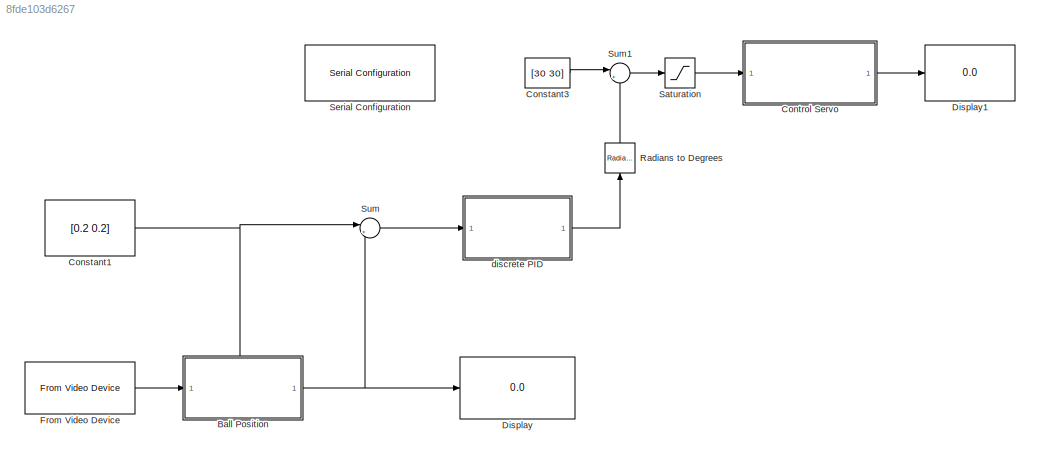
MODEL slx_8fde103d6267
KIND model
CONFIG AbsTol = auto
CONFIG EnableMultiTasking = off
CONFIG FixedStep = 1/30
CONFIG MaxStep = auto
CONFIG MinStep = auto
CONFIG RelTol = 1e-3
CONFIG SampleTimeConstraint = Unconstrained
CONFIG SolverName = VariableStepAuto
CONFIG StartTime = 0.0
CONFIG StopTime = inf
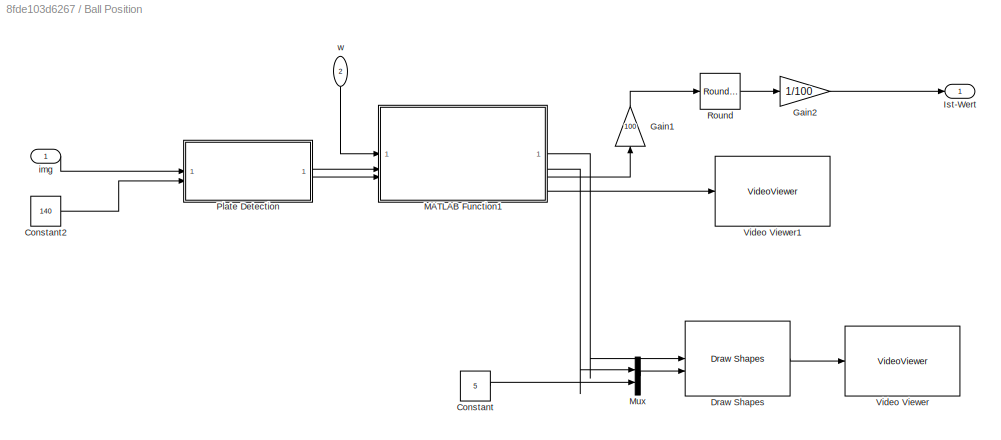
BLOCK [SubSystem] Ball Position
  PortSchema = {"entries":[{"content":{"sides":[{"content":{"connectorIds":["In1"]},"type":"ConnectorPlacement.EquallySpacedRectSide","uuid":"ceb15f42-21bb-4f4e-b2bb-f76c0e940da7"},{"content":{"connectorIds":["Out1"],"side":"RIGHT"},"type":"ConnectorPlacement.EquallySpacedRectSide","uuid":"4847c9c9-69f0-4792-8281-833646641724"},{"content":{"connectorIds":["In2"],"side":"TOP"},"type":"ConnectorPlacement.EquallySp...<+245ch>
BLOCK [Constant] Ball Position/Constant
  Value = 5
  VectorParams1D = off
BLOCK [Constant] Ball Position/Constant2
  Value = 140
BLOCK [Reference] Ball Position/Draw Shapes  REF=visiontextngfix/Draw Shapes
  SourceBlock = visiontextngfix/Draw Shapes
  SourceType = Draw Shapes
BLOCK [Gain] Ball Position/Gain1
  Gain = 100
  NameLocation = right
BLOCK [Gain] Ball Position/Gain2
  Gain = 1/100
BLOCK [Outport] Ball Position/Ist-Wert
  IconDisplay = Signal name
  NameLocation = top
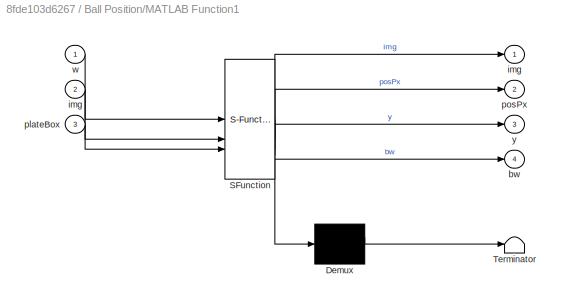
BLOCK [SubSystem] Ball Position/MATLAB Function1
  ErrorFcn = Stateflow.Translate.translate
  LibrarySourceBlock = simulink/User-Defined\nFunctions/MATLAB Function
  PermitHierarchicalResolution = ExplicitOnly
  SFBlockType = MATLAB Function
  TreatAsAtomicUnit = on
BLOCK [Demux] Ball Position/MATLAB Function1/ Demux 
  Outputs = 1
BLOCK [S-Function] Ball Position/MATLAB Function1/ SFunction 
  EnableBusSupport = on
  FunctionName = sf_sfun
  PortCounts = [3 5]
  SFcnIsStateOwnerBlock = off
  SFunctionDeploymentMode = off
  Tag = Stateflow S-Function 1
BLOCK [Terminator] Ball Position/MATLAB Function1/ Terminator 
BLOCK [Outport] Ball Position/MATLAB Function1/bw
  Port = 4
BLOCK [Outport] Ball Position/MATLAB Function1/img
BLOCK [Inport] Ball Position/MATLAB Function1/img 
  Port = 2
BLOCK [Inport] Ball Position/MATLAB Function1/plateBox
  Port = 3
BLOCK [Outport] Ball Position/MATLAB Function1/posPx
  Port = 2
BLOCK [Inport] Ball Position/MATLAB Function1/w
BLOCK [Outport] Ball Position/MATLAB Function1/y
  Port = 3
BLOCK [Mux] Ball Position/Mux
  DisplayOption = bar
  Inputs = 2
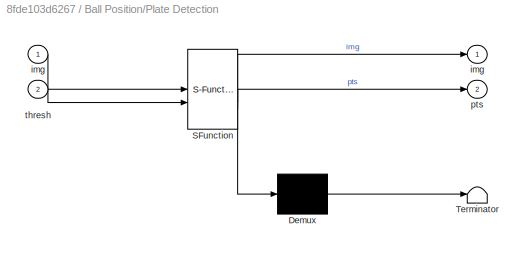
BLOCK [SubSystem] Ball Position/Plate Detection
  ErrorFcn = Stateflow.Translate.translate
  LibrarySourceBlock = simulink/User-Defined\nFunctions/MATLAB Function
  PermitHierarchicalResolution = ExplicitOnly
  SFBlockType = MATLAB Function
  TreatAsAtomicUnit = on
BLOCK [Demux] Ball Position/Plate Detection/ Demux 
  Outputs = 1
BLOCK [S-Function] Ball Position/Plate Detection/ SFunction 
  EnableBusSupport = on
  FunctionName = sf_sfun
  PortCounts = [2 3]
  SFcnIsStateOwnerBlock = off
  SFunctionDeploymentMode = off
  Tag = Stateflow S-Function 2
BLOCK [Terminator] Ball Position/Plate Detection/ Terminator 
BLOCK [Outport] Ball Position/Plate Detection/img
BLOCK [Inport] Ball Position/Plate Detection/img 
BLOCK [Outport] Ball Position/Plate Detection/pts
  Port = 2
BLOCK [Inport] Ball Position/Plate Detection/thresh
  Port = 2
BLOCK [Rounding] Ball Position/Round
  Operator = round
BLOCK [VideoViewer] Ball Position/Video Viewer
  FigPos = [1031 805 816 339]
  ScopeSpecificationString = vipscopes.VideoViewerScopeCfg('CurrentConfiguration', extmgr.ConfigurationSet(extmgr.Configuration('Core','General UI',true),extmgr.Configuration('Core','Source UI',true),extmgr.Configuration('Sources','WiredSimulink',true),extmgr.Configuration('Visuals','Video',true),extmgr.Configuration('Tools','Image Navigation Tools',true,'FitToView',true),extmgr.Configuration('Tools','Image Tool',true),extmgr...<+119ch>
  colormapValue = gray(256)
BLOCK [VideoViewer] Ball Position/Video Viewer1
  Commented = on
  FigPos = [179 908 614 489]
  ScopeSpecificationString = vipscopes.VideoViewerScopeCfg('CurrentConfiguration', extmgr.ConfigurationSet(extmgr.Configuration('Core','General UI',true),extmgr.Configuration('Core','Source UI',true),extmgr.Configuration('Sources','WiredSimulink',true),extmgr.Configuration('Visuals','Video',true),extmgr.Configuration('Tools','Image Navigation Tools',true),extmgr.Configuration('Tools','Image Tool',true),extmgr.Configuration('T...<+101ch>
BLOCK [Inport] Ball Position/img 
BLOCK [Inport] Ball Position/w
  IconDisplay = Signal name
  NameLocation = right
  Port = 2
BLOCK [Constant] Constant1
  SampleTime = 1/30
  Value = [0.2 0.2]
  VectorParams1D = off
BLOCK [Constant] Constant3
  Value = [30 30]
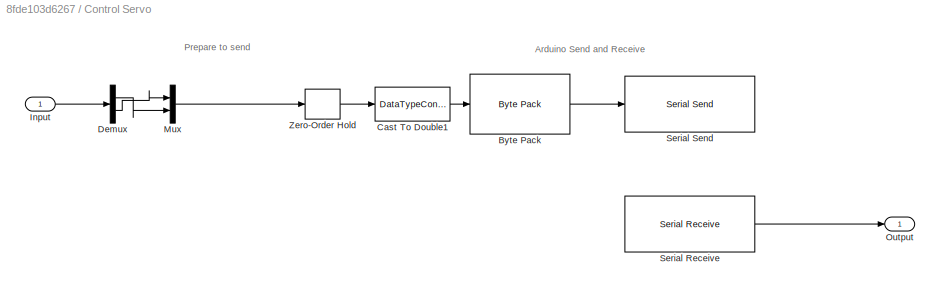
BLOCK [SubSystem] Control Servo
BLOCK [Reference] Control Servo/Byte Pack  REF=svdutilitieslib/Byte Pack
  SourceBlock = svdutilitieslib/Byte Pack
  SourceType = Byte pack
BLOCK [DataTypeConversion] Control Servo/Cast To Double1
  OutDataTypeStr = uint8
  RndMeth = Floor
  SaturateOnIntegerOverflow = off
BLOCK [Demux] Control Servo/Demux
  Outputs = 2
BLOCK [Inport] Control Servo/Input
BLOCK [Mux] Control Servo/Mux
  DisplayOption = bar
  Inputs = 2
BLOCK [Outport] Control Servo/Output
BLOCK [Reference] Control Servo/Serial Receive  REF=instrumentseriallib/Serial Receive
  LibrarySourceBlock = instrumentlib/Serial Receive
  SourceBlock = instrumentseriallib/Serial Receive
  SourceType = system.SerialReceive
BLOCK [Reference] Control Servo/Serial Send  REF=instrumentseriallib/Serial Send
  LibrarySourceBlock = instrumentlib/Serial Send
  SourceBlock = instrumentseriallib/Serial Send
  SourceType = system.SerialSend
BLOCK [ZeroOrderHold] Control Servo/Zero-Order Hold
  SampleTime = 0.01
BLOCK [Display] Display
  Decimation = 1
BLOCK [Display] Display1
  Decimation = 1
BLOCK [Reference] From Video Device  REF=imaqlib/From Video Device
  SourceBlock = imaqlib/From Video Device
  SourceType = From Video Device
  UserDataPersistent = on
BLOCK [Reference] Radians to Degrees  REF=simulink_extras/Transformations/Radians
to Degrees
  NameLocation = right
  SourceBlock = simulink_extras/Transformations/Radians\nto Degrees
  SourceType = RadiansToDegrees
BLOCK [Saturate] Saturation
  LowerLimit = 10
  UpperLimit = 50
BLOCK [Reference] Serial Configuration  REF=instrumentseriallib/Serial Configuration
  LibrarySourceBlock = instrumentlib/Serial Configuration
  Priority = -200000
  SourceBlock = instrumentseriallib/Serial Configuration
  SourceType = system.SerialConfiguration
BLOCK [Sum] Sum
  Inputs = |+-
BLOCK [Sum] Sum1
  Inputs = |++
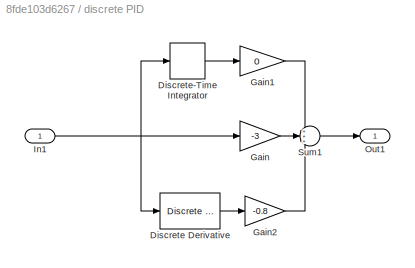
BLOCK [SubSystem] discrete PID
BLOCK [Reference] discrete PID/Discrete Derivative  REF=simulink/Discrete/Discrete Derivative
  SourceBlock = simulink/Discrete/Discrete Derivative
  SourceType = Discrete Derivative
BLOCK [DiscreteIntegrator] discrete PID/Discrete-Time Integrator
  ICPrevOutput = DiscIntNeverNeededParam
  ICPrevScaledInput = DiscIntNeverNeededParam
  InitialConditionSetting = Auto
  SampleTime = 1/30
BLOCK [Gain] discrete PID/Gain
  Gain = -3
BLOCK [Gain] discrete PID/Gain1
  Gain = 0
BLOCK [Gain] discrete PID/Gain2
  Gain = -0.8
BLOCK [Inport] discrete PID/In1
BLOCK [Outport] discrete PID/Out1
BLOCK [Sum] discrete PID/Sum1
  Inputs = +++
ANNOTATION Control Servo: Arduino Send and Receive
ANNOTATION Control Servo: Prepare to send
LINE Ball Position/Constant2:1 -> Ball Position/Plate Detection:2
LINE Ball Position/Constant:1 -> Ball Position/Mux:2
LINE Ball Position/Draw Shapes:1 -> Ball Position/Video Viewer:1
LINE Ball Position/Gain1:1 -> Ball Position/Round:1
LINE Ball Position/Gain2:1 -> Ball Position/Ist-Wert:1
LINE Ball Position/MATLAB Function1:1 -> Ball Position/Draw Shapes:1
LINE Ball Position/MATLAB Function1:2 -> Ball Position/Mux:1
LINE Ball Position/MATLAB Function1:3 -> Ball Position/Gain1:1
LINE Ball Position/MATLAB Function1:4 -> Ball Position/Video Viewer1:1
LINE Ball Position/Mux:1 -> Ball Position/Draw Shapes:2
LINE Ball Position/Plate Detection:1 -> Ball Position/MATLAB Function1:2
LINE Ball Position/Plate Detection:2 -> Ball Position/MATLAB Function1:3
LINE Ball Position/Round:1 -> Ball Position/Gain2:1
LINE Ball Position/img :1 -> Ball Position/Plate Detection:1
LINE Ball Position/w:1 -> Ball Position/MATLAB Function1:1
NET Ball Position:1 -> Display:1, Sum:2
NET Constant1:1 -> Ball Position:2, Sum:1
LINE Constant3:1 -> Sum1:1
LINE Control Servo/Byte Pack:1 -> Control Servo/Serial Send:1
LINE Control Servo/Cast To Double1:1 -> Control Servo/Byte Pack:1
LINE Control Servo/Demux:1 -> Control Servo/Mux:2
LINE Control Servo/Demux:2 -> Control Servo/Mux:1
LINE Control Servo/Input:1 -> Control Servo/Demux:1
LINE Control Servo/Mux:1 -> Control Servo/Zero-Order Hold:1
LINE Control Servo/Serial Receive:1 -> Control Servo/Output:1
LINE Control Servo/Zero-Order Hold:1 -> Control Servo/Cast To Double1:1
LINE Control Servo:1 -> Display1:1
LINE From Video Device:1 -> Ball Position:1
LINE Radians to Degrees:1 -> Sum1:2
LINE Saturation:1 -> Control Servo:1
LINE Sum1:1 -> Saturation:1
LINE Sum:1 -> discrete PID:1
LINE discrete PID/Discrete Derivative:1 -> discrete PID/Gain2:1
LINE discrete PID/Discrete-Time Integrator:1 -> discrete PID/Gain1:1
LINE discrete PID/Gain1:1 -> discrete PID/Sum1:1
LINE discrete PID/Gain2:1 -> discrete PID/Sum1:3
LINE discrete PID/Gain:1 -> discrete PID/Sum1:2
NET discrete PID/In1:1 -> discrete PID/Discrete Derivative:1, discrete PID/Discrete-Time Integrator:1, discrete PID/Gain:1
LINE discrete PID/Sum1:1 -> discrete PID/Out1:1
LINE discrete PID:1 -> Radians to Degrees:1
note: NET lines group one-source signal fan-out (src -> all destinations, sorted); 1:1 wires keep LINE
CHART Ball Position/MATLAB Function1 states=1 transitions=1
  STATE_LABEL 'eML_blk_kernel()'
  STATE_LABEL "SCRIPT:\nfunction [img, posPx, y, bw] = ballDetection(w,img, plateBox)\n\n    persistent Hblob  prevPos\n    \n    \n    plateBox = double(plateBox);\n\n    if isempty(Hblob)\n       Hblob = vision.BlobAnalysis('PerimeterOutputPort',1,'MinimumBlobArea',1500,'MaximumBlobArea',3300,'MaximumCount',10);\n       prevPos =  zeros(1,2);\n    end\n    \n    if ~isequal(plateBox,zeros(1,4))\n        bw = rgb2gray(imcrop...<+603ch>"
CHART Ball Position/Plate Detection states=1 transitions=1
  STATE_LABEL 'eML_blk_kernel()'
  STATE_LABEL "SCRIPT:\nfunction [img,pts] = getPlatePts(img,thresh)\n\npersistent bbox\n\n    \n\nif isempty(bbox)\n    hBlob = vision.BlobAnalysis('AreaOutputPort',1, ...\n                                'BoundingBoxOutputPort',1, ...\n                                'ExcludeBorderBlobs',0, ...\n                                'MinimumBlobArea',450^2,...\n                                'MaximumBlobArea',490^2);\n    grayi...<+241ch>"
CHART  states=0 transitions=0
CHART  states=0 transitions=0
